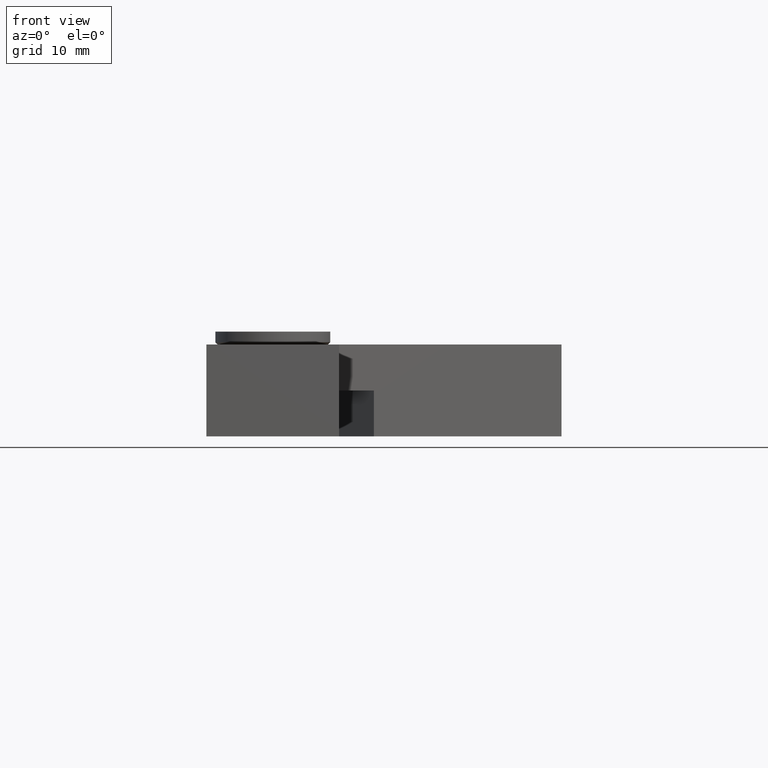
[diagram: clean part render]
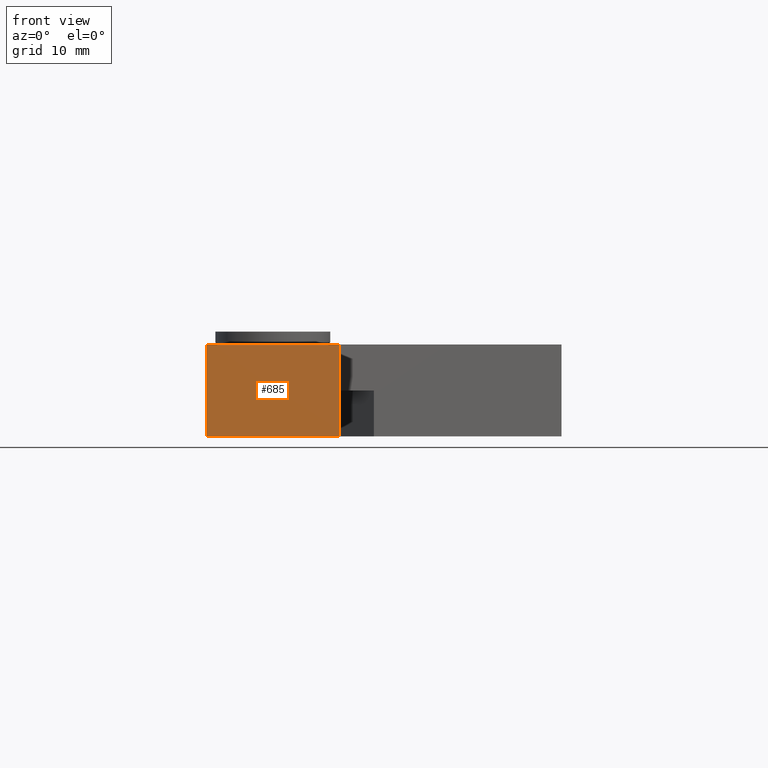
[diagram: same view with one face highlighted and labeled with its STEP entity id]
A machine part, front view. The second image highlights one B-rep face of the part: STEP entity #685.
In plain terms, the highlighted planar face has unit normal (0, -1, 0).
Its self-contained STEP definition (entity closure, byte-faithful):
#64=PLANE('',#813);
#90=FACE_OUTER_BOUND('',#129,.T.);
#129=EDGE_LOOP('',(#523,#524,#525,#526));
#174=LINE('',#1104,#230);
#178=LINE('',#1119,#234);
#182=LINE('',#1134,#238);
#184=LINE('',#1137,#240);
#230=VECTOR('',#895,10.);
#234=VECTOR('',#909,10.);
#238=VECTOR('',#927,10.);
#240=VECTOR('',#931,10.);
#320=VERTEX_POINT('',#1101);
#321=VERTEX_POINT('',#1103);
#327=VERTEX_POINT('',#1117);
#331=VERTEX_POINT('',#1133);
#390=EDGE_CURVE('',#320,#321,#174,.T.);
#398=EDGE_CURVE('',#327,#320,#178,.T.);
#405=EDGE_CURVE('',#331,#321,#182,.T.);
#407=EDGE_CURVE('',#327,#331,#184,.T.);
#523=ORIENTED_EDGE('',*,*,#407,.T.);
#524=ORIENTED_EDGE('',*,*,#405,.T.);
#525=ORIENTED_EDGE('',*,*,#390,.F.);
#526=ORIENTED_EDGE('',*,*,#398,.F.);
#685=ADVANCED_FACE('',(#90),#64,.T.);
#813=AXIS2_PLACEMENT_3D('',#1136,#929,#930);
#895=DIRECTION('',(1.,0.,0.));
#909=DIRECTION('',(0.,0.,1.));
#927=DIRECTION('',(0.,0.,1.));
#929=DIRECTION('center_axis',(0.,-1.,0.));
#930=DIRECTION('ref_axis',(1.,0.,0.));
#931=DIRECTION('',(1.,0.,0.));
#1101=CARTESIAN_POINT('',(-6.5,-33.5,9.));
#1103=CARTESIAN_POINT('',(6.5,-33.5,9.));
#1104=CARTESIAN_POINT('',(-6.5,-33.5,9.));
#1117=CARTESIAN_POINT('',(-6.5,-33.5,0.));
#1119=CARTESIAN_POINT('',(-6.5,-33.5,0.));
#1133=CARTESIAN_POINT('',(6.5,-33.5,0.));
#1134=CARTESIAN_POINT('',(6.5,-33.5,0.));
#1136=CARTESIAN_POINT('Origin',(-6.5,-33.5,0.));
#1137=CARTESIAN_POINT('',(-6.5,-33.5,0.));